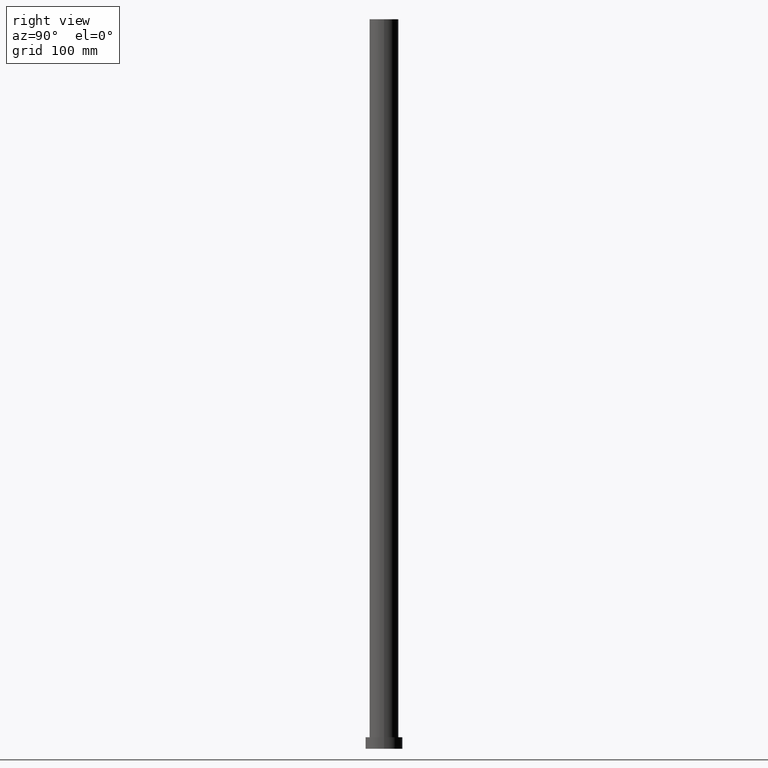
[diagram: clean part render]
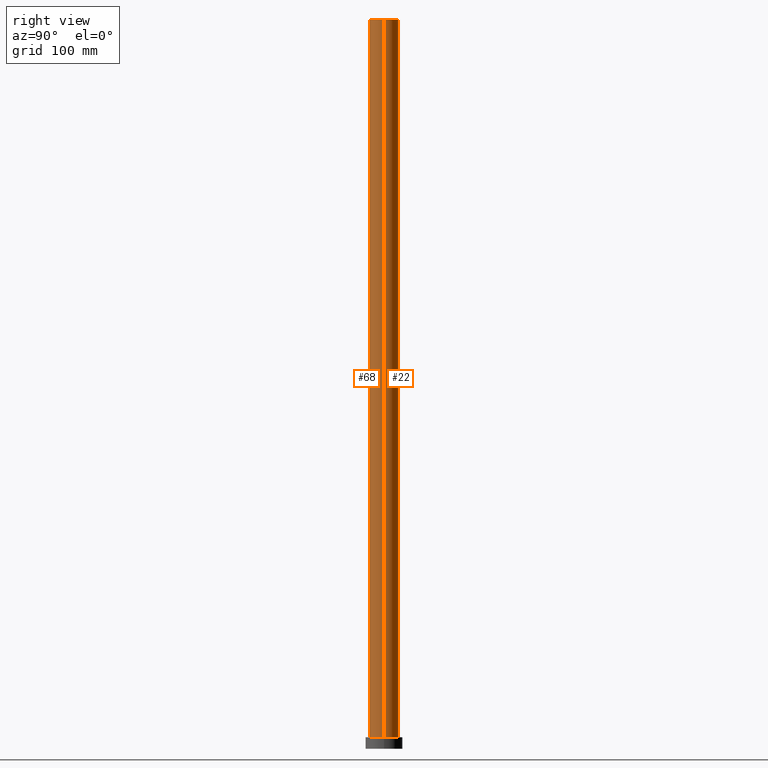
[diagram: same view with one multi-face feature highlighted, each face labeled with its STEP entity id]
A machine part, right view. The highlighted faces form ONE feature: a constant-radius fillet chain: 2 tangent blend faces with common blend radius 12.5 mm. The faces share edges in the B-rep.
Their STEP definitions:
[1] entity #68 (Cylinder):
#13 = CYLINDRICAL_SURFACE ( 'NONE', #65, 12.50000000000000000 ) ;
#16 = CARTESIAN_POINT ( 'NONE',  ( 12.50000000000000000, 1.530808498934191521E-15, 630.0000000000000000 ) ) ;
#19 = VECTOR ( 'NONE', #168, 1000.000000000000000 ) ;
#34 = EDGE_CURVE ( 'NONE', #112, #170, #50, .T. ) ;
#37 = CARTESIAN_POINT ( 'NONE',  ( -12.50000000000000000, 0.000000000000000000, 10.00000000000000000 ) ) ;
#39 = DIRECTION ( 'NONE',  ( 0.000000000000000000, 0.000000000000000000, 1.000000000000000000 ) ) ;
#43 = VECTOR ( 'NONE', #214, 1000.000000000000000 ) ;
#50 = LINE ( 'NONE', #191, #19 ) ;
#55 = LINE ( 'NONE', #16, #43 ) ;
#65 = AXIS2_PLACEMENT_3D ( 'NONE', #129, #245, #249 ) ;
#68 = ADVANCED_FACE ( 'NONE', ( #230 ), #13, .T. ) ;
#71 = VERTEX_POINT ( 'NONE', #92 ) ;
#88 = ORIENTED_EDGE ( 'NONE', *, *, #110, .F. ) ;
#91 = VERTEX_POINT ( 'NONE', #235 ) ;
#92 = CARTESIAN_POINT ( 'NONE',  ( 12.50000000000000000, 1.530808498934191521E-15, 10.00000000000000000 ) ) ;
#94 = ORIENTED_EDGE ( 'NONE', *, *, #222, .F. ) ;
#103 = DIRECTION ( 'NONE',  ( 1.000000000000000000, 0.000000000000000000, 0.000000000000000000 ) ) ;
#106 = EDGE_CURVE ( 'NONE', #170, #71, #179, .T. ) ;
#110 = EDGE_CURVE ( 'NONE', #112, #91, #228, .T. ) ;
#112 = VERTEX_POINT ( 'NONE', #238 ) ;
#115 = ORIENTED_EDGE ( 'NONE', *, *, #34, .T. ) ;
#116 = ORIENTED_EDGE ( 'NONE', *, *, #106, .T. ) ;
#129 = CARTESIAN_POINT ( 'NONE',  ( 0.000000000000000000, 0.000000000000000000, 630.0000000000000000 ) ) ;
#149 = EDGE_LOOP ( 'NONE', ( #94, #88, #115, #116 ) ) ;
#166 = AXIS2_PLACEMENT_3D ( 'NONE', #254, #39, #103 ) ;
#168 = DIRECTION ( 'NONE',  ( -0.000000000000000000, -0.000000000000000000, -1.000000000000000000 ) ) ;
#170 = VERTEX_POINT ( 'NONE', #37 ) ;
#179 = CIRCLE ( 'NONE', #166, 12.50000000000000000 ) ;
#191 = CARTESIAN_POINT ( 'NONE',  ( -12.50000000000000000, 0.000000000000000000, 630.0000000000000000 ) ) ;
#201 = DIRECTION ( 'NONE',  ( 0.000000000000000000, 0.000000000000000000, 1.000000000000000000 ) ) ;
#214 = DIRECTION ( 'NONE',  ( -0.000000000000000000, -0.000000000000000000, -1.000000000000000000 ) ) ;
#219 = AXIS2_PLACEMENT_3D ( 'NONE', #232, #201, #250 ) ;
#222 = EDGE_CURVE ( 'NONE', #91, #71, #55, .T. ) ;
#228 = CIRCLE ( 'NONE', #219, 12.50000000000000000 ) ;
#230 = FACE_OUTER_BOUND ( 'NONE', #149, .T. ) ;
#232 = CARTESIAN_POINT ( 'NONE',  ( 0.000000000000000000, 0.000000000000000000, 630.0000000000000000 ) ) ;
#235 = CARTESIAN_POINT ( 'NONE',  ( 12.50000000000000000, 1.530808498934191521E-15, 630.0000000000000000 ) ) ;
#238 = CARTESIAN_POINT ( 'NONE',  ( -12.50000000000000000, 0.000000000000000000, 630.0000000000000000 ) ) ;
#245 = DIRECTION ( 'NONE',  ( -0.000000000000000000, -0.000000000000000000, -1.000000000000000000 ) ) ;
#249 = DIRECTION ( 'NONE',  ( -1.000000000000000000, 0.000000000000000000, 0.000000000000000000 ) ) ;
#250 = DIRECTION ( 'NONE',  ( 1.000000000000000000, 0.000000000000000000, 0.000000000000000000 ) ) ;
#254 = CARTESIAN_POINT ( 'NONE',  ( 0.000000000000000000, 0.000000000000000000, 10.00000000000000000 ) ) ;
[2] entity #22 (Cylinder):
#9 = EDGE_CURVE ( 'NONE', #71, #170, #45, .T. ) ;
#10 = DIRECTION ( 'NONE',  ( 0.000000000000000000, 0.000000000000000000, 1.000000000000000000 ) ) ;
#16 = CARTESIAN_POINT ( 'NONE',  ( 12.50000000000000000, 1.530808498934191521E-15, 630.0000000000000000 ) ) ;
#19 = VECTOR ( 'NONE', #168, 1000.000000000000000 ) ;
#22 = ADVANCED_FACE ( 'NONE', ( #150 ), #130, .T. ) ;
#28 = CARTESIAN_POINT ( 'NONE',  ( 0.000000000000000000, 0.000000000000000000, 630.0000000000000000 ) ) ;
#31 = ORIENTED_EDGE ( 'NONE', *, *, #57, .F. ) ;
#32 = ORIENTED_EDGE ( 'NONE', *, *, #222, .T. ) ;
#33 = DIRECTION ( 'NONE',  ( 1.000000000000000000, 0.000000000000000000, 0.000000000000000000 ) ) ;
#34 = EDGE_CURVE ( 'NONE', #112, #170, #50, .T. ) ;
#37 = CARTESIAN_POINT ( 'NONE',  ( -12.50000000000000000, 0.000000000000000000, 10.00000000000000000 ) ) ;
#43 = VECTOR ( 'NONE', #214, 1000.000000000000000 ) ;
#45 = CIRCLE ( 'NONE', #146, 12.50000000000000000 ) ;
#50 = LINE ( 'NONE', #191, #19 ) ;
#52 = AXIS2_PLACEMENT_3D ( 'NONE', #154, #10, #33 ) ;
#53 = EDGE_LOOP ( 'NONE', ( #31, #32, #54, #244 ) ) ;
#54 = ORIENTED_EDGE ( 'NONE', *, *, #9, .T. ) ;
#55 = LINE ( 'NONE', #16, #43 ) ;
#57 = EDGE_CURVE ( 'NONE', #91, #112, #164, .T. ) ;
#67 = AXIS2_PLACEMENT_3D ( 'NONE', #28, #188, #113 ) ;
#71 = VERTEX_POINT ( 'NONE', #92 ) ;
#91 = VERTEX_POINT ( 'NONE', #235 ) ;
#92 = CARTESIAN_POINT ( 'NONE',  ( 12.50000000000000000, 1.530808498934191521E-15, 10.00000000000000000 ) ) ;
#112 = VERTEX_POINT ( 'NONE', #238 ) ;
#113 = DIRECTION ( 'NONE',  ( -1.000000000000000000, 0.000000000000000000, 0.000000000000000000 ) ) ;
#130 = CYLINDRICAL_SURFACE ( 'NONE', #67, 12.50000000000000000 ) ;
#146 = AXIS2_PLACEMENT_3D ( 'NONE', #190, #210, #185 ) ;
#150 = FACE_OUTER_BOUND ( 'NONE', #53, .T. ) ;
#154 = CARTESIAN_POINT ( 'NONE',  ( 0.000000000000000000, 0.000000000000000000, 630.0000000000000000 ) ) ;
#164 = CIRCLE ( 'NONE', #52, 12.50000000000000000 ) ;
#168 = DIRECTION ( 'NONE',  ( -0.000000000000000000, -0.000000000000000000, -1.000000000000000000 ) ) ;
#170 = VERTEX_POINT ( 'NONE', #37 ) ;
#185 = DIRECTION ( 'NONE',  ( 1.000000000000000000, 0.000000000000000000, 0.000000000000000000 ) ) ;
#188 = DIRECTION ( 'NONE',  ( -0.000000000000000000, -0.000000000000000000, -1.000000000000000000 ) ) ;
#190 = CARTESIAN_POINT ( 'NONE',  ( 0.000000000000000000, 0.000000000000000000, 10.00000000000000000 ) ) ;
#191 = CARTESIAN_POINT ( 'NONE',  ( -12.50000000000000000, 0.000000000000000000, 630.0000000000000000 ) ) ;
#210 = DIRECTION ( 'NONE',  ( 0.000000000000000000, 0.000000000000000000, 1.000000000000000000 ) ) ;
#214 = DIRECTION ( 'NONE',  ( -0.000000000000000000, -0.000000000000000000, -1.000000000000000000 ) ) ;
#222 = EDGE_CURVE ( 'NONE', #91, #71, #55, .T. ) ;
#235 = CARTESIAN_POINT ( 'NONE',  ( 12.50000000000000000, 1.530808498934191521E-15, 630.0000000000000000 ) ) ;
#238 = CARTESIAN_POINT ( 'NONE',  ( -12.50000000000000000, 0.000000000000000000, 630.0000000000000000 ) ) ;
#244 = ORIENTED_EDGE ( 'NONE', *, *, #34, .F. ) ;